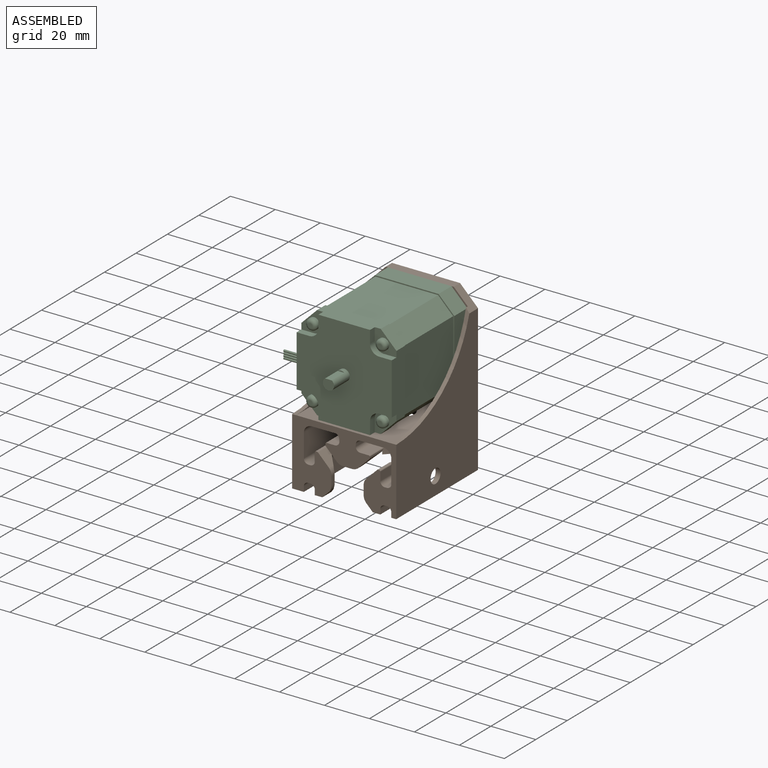
[diagram: assembled view]
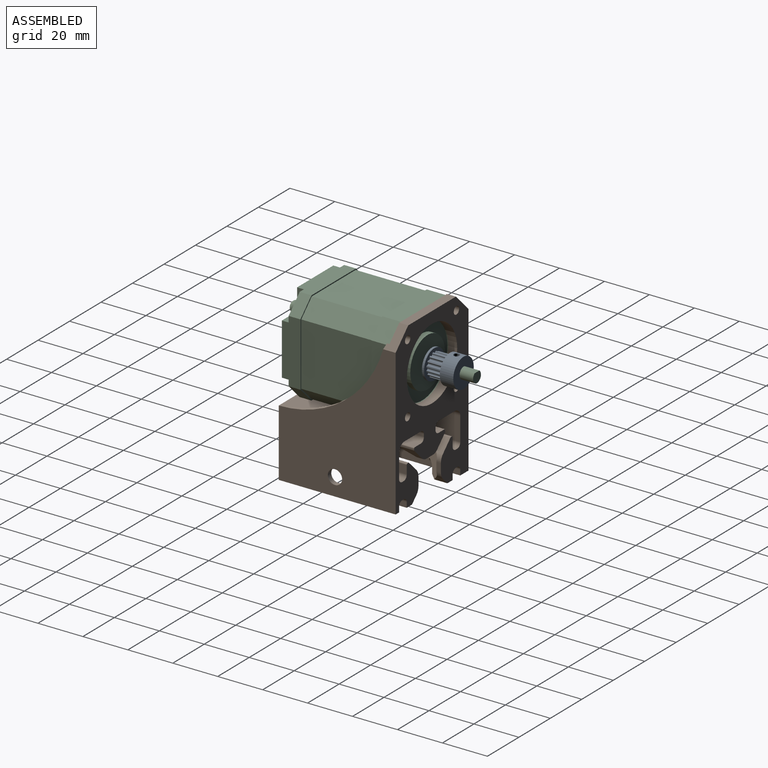
[diagram: assembled view, second angle]
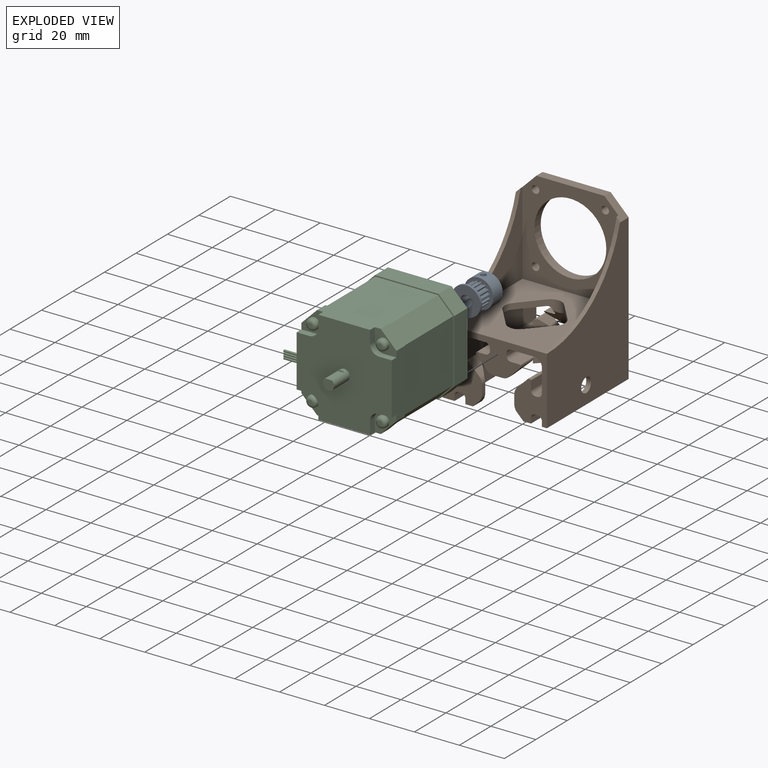
[diagram: exploded view]
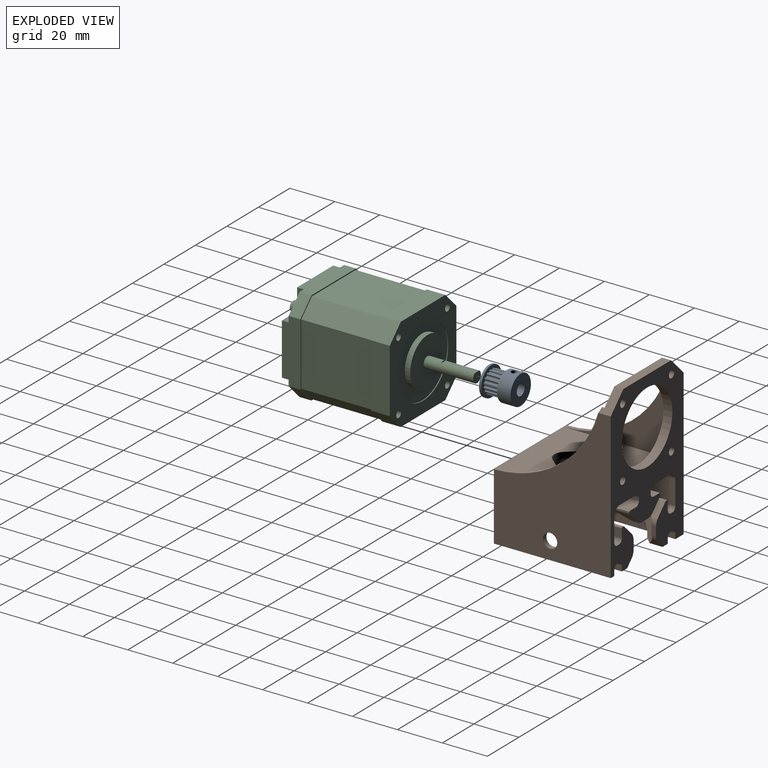
[diagram: exploded view, second angle]
ASSEMBLY  parts=3 mates=2
PART A: 104 faces, bbox 13x13x14 mm
  f0: cylinder r=2.5mm len=14mm, axis (0,0,1), area 214.8mm2, adj f2,f102,f103
  f1: cylinder r=6.5mm len=13mm, axis (0,0,1), area 240.1mm2, adj f2,f3,f103
  f2: plane 13x13mm, normal (0,0,-1), area 113.1mm2, adj f0,f1
  f3: plane 13x13mm, normal (0,0,1), area 62.7mm2, adj f1,f4,f5,f6,f7,f8,f9,f10
  f4: cylinder r=0.15mm len=7mm, axis (0,0,-1), area 1.7mm2, adj f3,f5,f99,f100
  f5: cylinder r=1mm len=7mm, axis (0,0,-1), area 1.7mm2, adj f3,f4,f6,f100
  f6: cylinder r=0.56mm len=7mm, axis (0,0,-1), area 9mm2, adj f3,f5,f7,f100
  f7: cylinder r=1mm len=7mm, axis (0,0,-1), area 1.7mm2, adj f3,f6,f8,f100
  f8: cylinder r=0.15mm len=7mm, axis (0,0,-1), area 1.7mm2, adj f3,f7,f9,f100
  f9: plane 7x0.49mm, normal (0.98,0.2,0), area 3.5mm2, adj f3,f8,f10,f100
  f10: cylinder r=0.15mm len=7mm, axis (0,0,-1), area 1.7mm2, adj f3,f9,f11,f100
  f11: cylinder r=1mm len=7mm, axis (0,0,-1), area 1.7mm2, adj f3,f10,f12,f100
  f12: cylinder r=0.56mm len=7mm, axis (0,0,-1), area 9mm2, adj f3,f11,f13,f100
  f13: cylinder r=1mm len=7mm, axis (0,0,-1), area 1.7mm2, adj f3,f12,f14,f100
  f14: cylinder r=0.15mm len=7mm, axis (0,0,-1), area 1.7mm2, adj f3,f13,f15,f100
  f15: plane 7x0.41mm, normal (0.83,0.56,0), area 3.5mm2, adj f3,f14,f16,f100
  f16: cylinder r=0.15mm len=7mm, axis (0,0,-1), area 1.7mm2, adj f3,f15,f17,f100
  f17: cylinder r=1mm len=7mm, axis (0,0,-1), area 1.7mm2, adj f3,f16,f18,f100
  f18: cylinder r=0.56mm len=7mm, axis (0,0,-1), area 9mm2, adj f3,f17,f19,f100
  f19: cylinder r=1mm len=7mm, axis (0,0,-1), area 1.7mm2, adj f3,f18,f20,f100
  f20: cylinder r=0.15mm len=7mm, axis (0,0,-1), area 1.7mm2, adj f3,f19,f21,f100
  f21: plane 7x0.41mm, normal (0.56,0.83,0), area 3.5mm2, adj f3,f20,f22,f100
  f22: cylinder r=0.15mm len=7mm, axis (0,0,-1), area 1.7mm2, adj f3,f21,f23,f100
  f23: cylinder r=1mm len=7mm, axis (0,0,-1), area 1.7mm2, adj f3,f22,f24,f100
  f24: cylinder r=0.56mm len=7mm, axis (0,0,-1), area 9mm2, adj f3,f23,f25,f100
  f25: cylinder r=1mm len=7mm, axis (0,0,-1), area 1.7mm2, adj f3,f24,f26,f100
  f26: cylinder r=0.15mm len=7mm, axis (0,0,-1), area 1.7mm2, adj f3,f25,f27,f100
  f27: plane 7x0.49mm, normal (0.2,0.98,0), area 3.5mm2, adj f3,f26,f28,f100
  f28: cylinder r=0.15mm len=7mm, axis (0,0,-1), area 1.7mm2, adj f3,f27,f29,f100
  f29: cylinder r=1mm len=7mm, axis (0,0,-1), area 1.7mm2, adj f3,f28,f30,f100
  f30: cylinder r=0.56mm len=7mm, axis (0,0,-1), area 9mm2, adj f3,f29,f31,f100
  f31: cylinder r=1mm len=7mm, axis (0,0,-1), area 1.7mm2, adj f3,f30,f32,f100
  f32: cylinder r=0.15mm len=7mm, axis (0,0,-1), area 1.7mm2, adj f3,f31,f33,f100
  f33: plane 7x0.49mm, normal (-0.2,0.98,0), area 3.5mm2, adj f3,f32,f34,f100
  f34: cylinder r=0.15mm len=7mm, axis (0,0,-1), area 1.7mm2, adj f3,f33,f35,f100
  f35: cylinder r=1mm len=7mm, axis (0,0,-1), area 1.7mm2, adj f3,f34,f36,f100
  f36: cylinder r=0.56mm len=7mm, axis (0,0,-1), area 9mm2, adj f3,f35,f37,f100
  f37: cylinder r=1mm len=7mm, axis (0,0,-1), area 1.7mm2, adj f3,f36,f38,f100
  f38: cylinder r=0.15mm len=7mm, axis (0,0,-1), area 1.7mm2, adj f3,f37,f39,f100
  f39: plane 7x0.41mm, normal (-0.56,0.83,0), area 3.5mm2, adj f3,f38,f40,f100
  f40: cylinder r=0.15mm len=7mm, axis (0,0,-1), area 1.7mm2, adj f3,f39,f41,f100
  f41: cylinder r=1mm len=7mm, axis (0,0,-1), area 1.7mm2, adj f3,f40,f42,f100
  f42: cylinder r=0.56mm len=7mm, axis (0,0,-1), area 9mm2, adj f3,f41,f43,f100
  f43: cylinder r=1mm len=7mm, axis (0,0,-1), area 1.7mm2, adj f3,f42,f44,f100
  f44: cylinder r=0.15mm len=7mm, axis (0,0,-1), area 1.7mm2, adj f3,f43,f45,f100
  f45: plane 7x0.41mm, normal (-0.83,0.56,0), area 3.5mm2, adj f3,f44,f46,f100
  f46: cylinder r=0.15mm len=7mm, axis (0,0,-1), area 1.7mm2, adj f3,f45,f47,f100
  f47: cylinder r=1mm len=7mm, axis (0,0,-1), area 1.7mm2, adj f3,f46,f48,f100
  f48: cylinder r=0.56mm len=7mm, axis (0,0,-1), area 9mm2, adj f3,f47,f49,f100
  f49: cylinder r=1mm len=7mm, axis (0,0,-1), area 1.7mm2, adj f3,f48,f50,f100
  f50: cylinder r=0.15mm len=7mm, axis (0,0,-1), area 1.7mm2, adj f3,f49,f51,f100
  f51: plane 7x0.49mm, normal (-0.98,0.2,0), area 3.5mm2, adj f3,f50,f52,f100
  f52: cylinder r=0.15mm len=7mm, axis (0,0,-1), area 1.7mm2, adj f3,f51,f53,f100
  f53: cylinder r=1mm len=7mm, axis (0,0,-1), area 1.7mm2, adj f3,f52,f54,f100
  f54: cylinder r=0.56mm len=7mm, axis (0,0,-1), area 9mm2, adj f3,f53,f55,f100
  f55: cylinder r=1mm len=7mm, axis (0,0,-1), area 1.7mm2, adj f3,f54,f56,f100
  f56: cylinder r=0.15mm len=7mm, axis (0,0,-1), area 1.7mm2, adj f3,f55,f57,f100
  f57: plane 7x0.49mm, normal (-0.98,-0.2,0), area 3.5mm2, adj f3,f56,f58,f100
  f58: cylinder r=0.15mm len=7mm, axis (0,0,-1), area 1.7mm2, adj f3,f57,f59,f100
  f59: cylinder r=1mm len=7mm, axis (0,0,-1), area 1.7mm2, adj f3,f58,f60,f100
  f60: cylinder r=0.56mm len=7mm, axis (0,0,-1), area 9mm2, adj f3,f59,f61,f100
  f61: cylinder r=1mm len=7mm, axis (0,0,-1), area 1.7mm2, adj f3,f60,f62,f100
  f62: cylinder r=0.15mm len=7mm, axis (0,0,-1), area 1.7mm2, adj f3,f61,f63,f100
  f63: plane 7x0.41mm, normal (-0.83,-0.56,0), area 3.5mm2, adj f3,f62,f64,f100
  f64: cylinder r=0.15mm len=7mm, axis (0,0,-1), area 1.7mm2, adj f3,f63,f65,f100
  f65: cylinder r=1mm len=7mm, axis (0,0,-1), area 1.7mm2, adj f3,f64,f66,f100
  f66: cylinder r=0.56mm len=7mm, axis (0,0,-1), area 9mm2, adj f3,f65,f67,f100
  f67: cylinder r=1mm len=7mm, axis (0,0,-1), area 1.7mm2, adj f3,f66,f68,f100
  f68: cylinder r=0.15mm len=7mm, axis (0,0,-1), area 1.7mm2, adj f3,f67,f69,f100
  f69: plane 7x0.41mm, normal (-0.56,-0.83,0), area 3.5mm2, adj f3,f68,f70,f100
  f70: cylinder r=0.15mm len=7mm, axis (0,0,-1), area 1.7mm2, adj f3,f69,f71,f100
  f71: cylinder r=1mm len=7mm, axis (0,0,-1), area 1.7mm2, adj f3,f70,f72,f100
  f72: cylinder r=0.56mm len=7mm, axis (0,0,-1), area 9mm2, adj f3,f71,f73,f100
  f73: cylinder r=1mm len=7mm, axis (0,0,-1), area 1.7mm2, adj f3,f72,f74,f100
  f74: cylinder r=0.15mm len=7mm, axis (0,0,-1), area 1.7mm2, adj f3,f73,f75,f100
  f75: plane 7x0.49mm, normal (-0.2,-0.98,0), area 3.5mm2, adj f3,f74,f76,f100
  f76: cylinder r=0.15mm len=7mm, axis (0,0,-1), area 1.7mm2, adj f3,f75,f77,f100
  f77: cylinder r=1mm len=7mm, axis (0,0,-1), area 1.7mm2, adj f3,f76,f78,f100
  f78: cylinder r=0.56mm len=7mm, axis (0,0,-1), area 9mm2, adj f3,f77,f79,f100
  f79: cylinder r=1mm len=7mm, axis (0,0,-1), area 1.7mm2, adj f3,f78,f80,f100
  f80: cylinder r=0.15mm len=7mm, axis (0,0,-1), area 1.7mm2, adj f3,f79,f81,f100
  f81: plane 7x0.49mm, normal (0.2,-0.98,0), area 3.5mm2, adj f3,f80,f82,f100
  f82: cylinder r=0.15mm len=7mm, axis (0,0,-1), area 1.7mm2, adj f3,f81,f83,f100
  f83: cylinder r=1mm len=7mm, axis (0,0,-1), area 1.7mm2, adj f3,f82,f84,f100
  f84: cylinder r=0.56mm len=7mm, axis (0,0,-1), area 9mm2, adj f3,f83,f85,f100
  f85: cylinder r=1mm len=7mm, axis (0,0,-1), area 1.7mm2, adj f3,f84,f86,f100
  f86: cylinder r=0.15mm len=7mm, axis (0,0,-1), area 1.7mm2, adj f3,f85,f87,f100
  f87: plane 7x0.41mm, normal (0.56,-0.83,0), area 3.5mm2, adj f3,f86,f88,f100
  f88: cylinder r=0.15mm len=7mm, axis (0,0,-1), area 1.7mm2, adj f3,f87,f89,f100
  f89: cylinder r=1mm len=7mm, axis (0,0,-1), area 1.7mm2, adj f3,f88,f90,f100
  f90: cylinder r=0.56mm len=7mm, axis (0,0,-1), area 9mm2, adj f3,f89,f91,f100
  f91: cylinder r=1mm len=7mm, axis (0,0,-1), area 1.7mm2, adj f3,f90,f92,f100
  f92: cylinder r=0.15mm len=7mm, axis (0,0,-1), area 1.7mm2, adj f3,f91,f93,f100
  f93: plane 7x0.41mm, normal (0.83,-0.56,0), area 3.5mm2, adj f3,f92,f94,f100
  f94: cylinder r=0.15mm len=7mm, axis (0,0,-1), area 1.7mm2, adj f3,f93,f95,f100
  f95: cylinder r=1mm len=7mm, axis (0,0,-1), area 1.7mm2, adj f3,f94,f96,f100
  f96: cylinder r=0.56mm len=7mm, axis (0,0,-1), area 9mm2, adj f3,f95,f97,f100
  f97: cylinder r=1mm len=7mm, axis (0,0,-1), area 1.7mm2, adj f3,f96,f98,f100
  f98: cylinder r=0.15mm len=7mm, axis (0,0,-1), area 1.7mm2, adj f3,f97,f99,f100
  f99: plane 7x0.49mm, normal (0.98,-0.2,0), area 3.5mm2, adj f3,f4,f98,f100
  f100: plane 13x13mm, normal (0,0,-1), area 62.7mm2, adj f4,f5,f6,f7,f8,f9,f10,f11
  f101: cylinder r=6.5mm len=13mm, axis (0,0,-1), area 40.8mm2, adj f100,f102
  f102: plane 13x13mm, normal (0,0,1), area 113.1mm2, adj f0,f101
  f103: cylinder r=1.25mm len=4.34mm, axis (0,-1,0), area 32.2mm2, adj f0,f1
PART B: 154 faces, bbox 46.4x73.1x52.1 mm
  f0: plane 52x13.06mm, normal (0,-1,0), area 470.1mm2, adj f5,f6,f88,f116,f125,f138,f140,f146
  f1: plane 9.14x3.34mm, normal (0,-1,0), area 24.9mm2, adj f91,f101,f116,f137
  f2: plane 9.14x3.34mm, normal (0,-1,0), area 24.9mm2, adj f92,f102,f125,f139
  f3: plane 9.14x3.34mm, normal (0,-1,0), area 24.9mm2, adj f89,f99,f116,f136
  f4: plane 9.14x3.34mm, normal (0,-1,0), area 24.9mm2, adj f90,f100,f125,f141
  f5: cylinder r=1.95mm len=14mm, axis (0,0,-1), area 40.8mm2, adj f0,f7,f116,f138
  f6: cylinder r=1.95mm len=14mm, axis (0,0,-1), area 40.8mm2, adj f0,f8,f125,f140
  f7: plane 12.05x0.96mm, normal (1,0,0), area 11.1mm2, adj f5,f9,f116,f138
  f8: plane 12.05x0.96mm, normal (1,0,0), area 11.1mm2, adj f6,f10,f125,f140
  f9: cylinder r=1.95mm len=11.09mm, axis (0,0,-1), area 30.2mm2, adj f7,f11,f116,f138
  f10: cylinder r=1.95mm len=11.09mm, axis (0,0,-1), area 30.2mm2, adj f8,f12,f125,f140
  f11: plane 9.14x3.77mm, normal (0,1,0), area 34.4mm2, adj f9,f13,f116,f138
  f12: plane 9.14x3.77mm, normal (0,1,0), area 34.4mm2, adj f10,f14,f125,f140
  f13: cylinder r=0.5mm len=9.14mm, axis (0,0,-1), area 7.1mm2, adj f11,f15,f116,f138
  f14: cylinder r=0.5mm len=9.14mm, axis (0,0,-1), area 7.1mm2, adj f12,f16,f125,f140
  f15: plane 8.63x0.53mm, normal (1,0,0), area 4.5mm2, adj f13,f17,f116,f138
  f16: plane 8.63x0.53mm, normal (1,0,0), area 4.5mm2, adj f14,f18,f125,f140
  f17: cylinder r=0.5mm len=8.1mm, axis (0,0,-1), area 3.1mm2, adj f15,f19,f116,f138
  f18: cylinder r=0.5mm len=8.1mm, axis (0,0,-1), area 3.1mm2, adj f16,f20,f125,f140
  f19: plane 7.75x5.05mm, normal (0.71,-0.71,0), area 37.3mm2, adj f17,f21,f116,f138
  f20: plane 7.75x5.05mm, normal (0.71,-0.71,0), area 37.3mm2, adj f18,f22,f125,f140
  f21: cylinder r=4.36mm len=2.78mm, axis (0,0,-1), area 6.5mm2, adj f19,f23,f116,f134,f138
  f22: cylinder r=4.36mm len=2.78mm, axis (0,0,-1), area 6.5mm2, adj f20,f24,f125,f135,f140
  f23: plane 3.8x2mm, normal (0,-1,0), area 7.6mm2, adj f21,f25,f116,f134
  f24: plane 3.8x2mm, normal (0,-1,0), area 7.6mm2, adj f22,f26,f125,f135
  f25: cylinder r=4.36mm len=2.78mm, axis (0,0,-1), area 6.5mm2, adj f23,f27,f116,f134,f138
  f26: cylinder r=4.36mm len=2.78mm, axis (0,0,-1), area 6.5mm2, adj f24,f28,f125,f135,f140
  f27: plane 7.75x5.05mm, normal (-0.71,-0.71,0), area 37.3mm2, adj f25,f29,f116,f138
  f28: plane 7.75x5.05mm, normal (-0.71,-0.71,0), area 37.3mm2, adj f26,f30,f125,f140
  f29: cylinder r=0.5mm len=8.1mm, axis (0,0,-1), area 3.1mm2, adj f27,f31,f116,f138
  f30: cylinder r=0.5mm len=8.1mm, axis (0,0,-1), area 3.1mm2, adj f28,f32,f125,f140
  f31: plane 8.63x0.53mm, normal (-1,0,0), area 4.5mm2, adj f29,f33,f116,f138
  f32: plane 8.63x0.53mm, normal (-1,0,0), area 4.5mm2, adj f30,f34,f125,f140
  f33: cylinder r=0.5mm len=9.14mm, axis (0,0,-1), area 7.1mm2, adj f31,f35,f116,f138
  f34: cylinder r=0.5mm len=9.14mm, axis (0,0,-1), area 7.1mm2, adj f32,f36,f125,f140
  f35: plane 9.14x3.77mm, normal (0,1,0), area 34.4mm2, adj f33,f37,f116,f138
  f36: plane 9.14x3.77mm, normal (0,1,0), area 34.4mm2, adj f34,f38,f125,f140
  f37: cylinder r=1.95mm len=11.09mm, axis (0,0,-1), area 30.2mm2, adj f35,f39,f116,f138
  f38: cylinder r=1.95mm len=11.09mm, axis (0,0,-1), area 30.2mm2, adj f36,f40,f125,f140
  f39: plane 12.05x0.96mm, normal (-1,0,0), area 11.1mm2, adj f37,f41,f116,f138
  f40: plane 11.18x0.96mm, normal (-1,0,0), area 10.7mm2, adj f38,f42,f125,f140,f148
  f41: cylinder r=1.95mm len=13.8mm, axis (0,0,-1), area 38.8mm2, adj f39,f116,f117,f138,f144,f150
  f42: cylinder r=1.95mm len=12.8mm, axis (0,0,-1), area 35.8mm2, adj f40,f117,f125,f145,f148
  f43: cylinder r=3.49mm len=52mm, axis (0,0,-1), area 296.8mm2, adj f116,f117,f118,f125
  f44: cylinder r=1.95mm len=14mm, axis (0,0,-1), area 40.8mm2, adj f46,f116,f118,f136
  f45: cylinder r=1.95mm len=14mm, axis (0,0,-1), area 40.8mm2, adj f47,f118,f125,f141
  f46: plane 12.05x0.96mm, normal (0,1,0), area 11.1mm2, adj f44,f48,f116,f136
  f47: plane 12.05x0.96mm, normal (0,1,0), area 11.1mm2, adj f45,f49,f125,f141
  f48: cylinder r=1.95mm len=11.09mm, axis (0,0,-1), area 30.2mm2, adj f46,f50,f116,f136
  f49: cylinder r=1.95mm len=11.09mm, axis (0,0,-1), area 30.2mm2, adj f47,f51,f125,f141
  f50: plane 9.14x3.77mm, normal (-1,0,0), area 34.4mm2, adj f48,f52,f116,f136
  f51: plane 9.14x3.77mm, normal (-1,0,0), area 34.4mm2, adj f49,f53,f125,f141
  f52: cylinder r=0.5mm len=9.14mm, axis (0,0,-1), area 7.1mm2, adj f50,f54,f116,f136
  f53: cylinder r=0.5mm len=9.14mm, axis (0,0,-1), area 7.1mm2, adj f51,f55,f125,f141
  f54: plane 8.63x0.57mm, normal (0,1,0), area 4.7mm2, adj f52,f56,f116,f136
  f55: plane 8.63x0.57mm, normal (0,1,0), area 4.7mm2, adj f53,f57,f125,f141
  f56: cylinder r=0.5mm len=8.07mm, axis (0,0,-1), area 3.1mm2, adj f54,f58,f116,f136
  f57: cylinder r=0.5mm len=8.07mm, axis (0,0,-1), area 3.1mm2, adj f55,f59,f125,f141
  f58: plane 7.71x5.01mm, normal (0.71,0.71,0), area 36.9mm2, adj f56,f60,f116,f136
  f59: plane 7.71x5.01mm, normal (0.71,0.71,0), area 36.9mm2, adj f57,f61,f125,f141
  f60: cylinder r=4.37mm len=2.79mm, axis (0,0,-1), area 6.5mm2, adj f58,f62,f116,f132,f136
  f61: cylinder r=4.37mm len=2.79mm, axis (0,0,-1), area 6.5mm2, adj f59,f63,f125,f133,f141
  f62: plane 3.87x2mm, normal (1,0,0), area 7.7mm2, adj f60,f64,f116,f132
  f63: plane 3.87x2mm, normal (1,0,0), area 7.7mm2, adj f61,f65,f125,f133
  f64: cylinder r=4.37mm len=3.36mm, axis (0,0,-1), area 8.9mm2, adj f62,f89,f116,f132,f136
  f65: cylinder r=4.37mm len=3.36mm, axis (0,0,-1), area 8.9mm2, adj f63,f90,f125,f133,f141
  f66: cylinder r=4.37mm len=3.36mm, axis (0,0,-1), area 8.9mm2, adj f68,f91,f116,f130,f137
  f67: cylinder r=4.37mm len=3.36mm, axis (0,0,-1), area 8.9mm2, adj f69,f92,f125,f131,f139
  f68: plane 3.87x2mm, normal (-1,0,0), area 7.7mm2, adj f66,f70,f116,f130
  f69: plane 3.87x2mm, normal (-1,0,0), area 7.7mm2, adj f67,f71,f125,f131
  f70: cylinder r=4.37mm len=3.36mm, axis (0,0,-1), area 8.9mm2, adj f68,f72,f116,f130,f137
  f71: cylinder r=4.37mm len=3.36mm, axis (0,0,-1), area 8.9mm2, adj f69,f73,f125,f131,f139
  f72: plane 7.71x4.45mm, normal (-0.71,0.71,0), area 34.5mm2, adj f70,f74,f116,f137
  f73: plane 7.71x4.45mm, normal (-0.71,0.71,0), area 34.5mm2, adj f71,f75,f125,f139
  f74: cylinder r=0.5mm len=8.07mm, axis (0,0,-1), area 3.1mm2, adj f72,f76,f116,f137
  f75: cylinder r=0.5mm len=8.07mm, axis (0,0,-1), area 3.1mm2, adj f73,f77,f125,f139
  f76: plane 8.63x0.57mm, normal (0,1,0), area 4.7mm2, adj f74,f78,f116,f137
  f77: plane 8.63x0.57mm, normal (0,1,0), area 4.7mm2, adj f75,f79,f125,f139
  f78: cylinder r=0.5mm len=9.14mm, axis (0,0,-1), area 7.1mm2, adj f76,f80,f116,f137
  f79: cylinder r=0.5mm len=9.14mm, axis (0,0,-1), area 7.1mm2, adj f77,f81,f125,f139
  f80: plane 9.14x3.77mm, normal (1,0,0), area 34.4mm2, adj f78,f82,f116,f137
  f81: plane 9.14x3.77mm, normal (1,0,0), area 34.4mm2, adj f79,f83,f125,f139
  f82: cylinder r=1.95mm len=11.09mm, axis (0,0,-1), area 30.2mm2, adj f80,f84,f116,f137
  f83: cylinder r=1.95mm len=11.09mm, axis (0,0,-1), area 30.2mm2, adj f81,f85,f125,f139
  f84: plane 12.05x0.96mm, normal (0,1,0), area 11.1mm2, adj f82,f86,f116,f137
  f85: plane 12.05x0.96mm, normal (0,1,0), area 11.1mm2, adj f83,f87,f125,f139
  f86: cylinder r=1.95mm len=14mm, axis (0,0,-1), area 40.8mm2, adj f84,f116,f119,f137
  f87: cylinder r=1.95mm len=14mm, axis (0,0,-1), area 40.8mm2, adj f85,f119,f125,f139
  f88: cylinder r=3.49mm len=52mm, axis (0,0,-1), area 296.8mm2, adj f0,f116,f119,f125
  f89: plane 5.8x2.53mm, normal (0.71,-0.71,0), area 16.2mm2, adj f3,f64,f116,f136
  f90: plane 5.8x2.53mm, normal (0.71,-0.71,0), area 16.2mm2, adj f4,f65,f125,f141
  f91: plane 5.8x2.53mm, normal (-0.71,-0.71,0), area 16.2mm2, adj f1,f66,f116,f137
  f92: plane 5.8x2.53mm, normal (-0.71,-0.71,0), area 16.2mm2, adj f2,f67,f125,f139
  f93: cylinder r=1.95mm len=11.09mm, axis (0,0,-1), area 30.2mm2, adj f95,f99,f116,f136
  f94: cylinder r=1.95mm len=11.09mm, axis (0,0,-1), area 30.2mm2, adj f96,f100,f125,f141
  f95: plane 12.05x0.96mm, normal (0,-1,0), area 11.1mm2, adj f93,f97,f116,f136
  f96: plane 12.05x0.96mm, normal (0,-1,0), area 11.1mm2, adj f94,f98,f125,f141
  f97: cylinder r=1.95mm len=14mm, axis (0,0,-1), area 40.8mm2, adj f95,f116,f118,f136
  f98: cylinder r=1.95mm len=14mm, axis (0,0,-1), area 40.8mm2, adj f96,f118,f125,f141
  f99: plane 9.14x2.21mm, normal (-1,0,0), area 20.2mm2, adj f3,f93,f116,f136
  f100: plane 9.14x2.21mm, normal (-1,0,0), area 20.2mm2, adj f4,f94,f125,f141
  f101: plane 9.14x2.21mm, normal (1,0,0), area 20.2mm2, adj f1,f103,f116,f137
  f102: plane 9.14x2.21mm, normal (1,0,0), area 20.2mm2, adj f2,f104,f125,f139
  f103: cylinder r=1.95mm len=11.09mm, axis (0,0,-1), area 30.2mm2, adj f101,f105,f116,f137
  f104: cylinder r=1.95mm len=11.09mm, axis (0,0,-1), area 30.2mm2, adj f102,f106,f125,f139
  f105: plane 12.05x0.96mm, normal (0,-1,0), area 11.1mm2, adj f103,f107,f116,f137
  f106: plane 12.05x0.96mm, normal (0,-1,0), area 11.1mm2, adj f104,f108,f125,f139
  f107: cylinder r=1.95mm len=14mm, axis (0,0,-1), area 40.8mm2, adj f105,f116,f119,f137
  f108: cylinder r=1.95mm len=14mm, axis (0,0,-1), area 40.8mm2, adj f106,f119,f125,f139
  f109: plane 48x42.7mm, normal (0,1,0), area 1547.3mm2, adj f110,f125,f127,f129,f144,f145,f146,f147
  f110: plane 43.08x42.7mm, normal (0,0,1), area 960.3mm2, adj f109,f114,f120,f121,f122,f123,f124,f127
  f111: plane 52x2.2mm, normal (0,-1,0), area 114.4mm2, adj f113,f116,f119,f125
  f112: plane 52x5.2mm, normal (0,-1,0), area 270.4mm2, adj f115,f116,f118,f125
  f113: plane 65x52mm, normal (1,0,0), area 2147mm2, adj f111,f116,f125,f126,f143,f152
  f114: plane 30.3x4mm, normal (0,1,0), area 121.2mm2, adj f110,f116,f142,f143
  f115: plane 65x52mm, normal (-1,0,0), area 2147mm2, adj f112,f116,f125,f128,f142,f153
  f116: plane 73x46.3mm, normal (0,0,-1), area 1851.5mm2, adj f0,f1,f3,f5,f7,f9,f11,f13
  f117: plane 52x10.23mm, normal (0,-1,0), area 397.5mm2, adj f41,f42,f43,f116,f125,f144,f145,f151
  f118: plane 52x23.67mm, normal (1,0,0), area 884.7mm2, adj f43,f44,f45,f97,f98,f112,f116,f125
  f119: plane 52x23.67mm, normal (-1,0,0), area 884.7mm2, adj f86,f87,f88,f107,f108,f111,f116,f125
  f120: cylinder r=16mm len=32mm, axis (0,0,1), area 402.1mm2, adj f110,f116
  f121: cylinder r=1.7mm len=4mm, axis (0,0,1), area 42.7mm2, adj f110,f116
  f122: cylinder r=1.7mm len=4mm, axis (0,0,1), area 42.7mm2, adj f110,f116
  f123: cylinder r=1.7mm len=4mm, axis (0,0,1), area 42.7mm2, adj f110,f116
  f124: cylinder r=1.7mm len=4mm, axis (0,0,1), area 42.7mm2, adj f110,f116
  f125: plane 46.3x29.92mm, normal (0,0,1), area 761.6mm2, adj f0,f2,f4,f6,f8,f10,f12,f14
  f126: cylinder r=48.28mm len=46.92mm, axis (1,0,0), area 114.1mm2, adj f113,f125,f127,f143
  f127: plane 48x36.88mm, normal (-1,0,0), area 484.7mm2, adj f109,f110,f126,f143
  f128: cylinder r=48.28mm len=46.92mm, axis (-1,0,0), area 114.1mm2, adj f115,f125,f129,f142
  f129: plane 48x36.88mm, normal (1,0,0), area 484.7mm2, adj f109,f110,f128,f142
  f130: plane 7.11x0.31mm, normal (0,0,1), area 1.9mm2, adj f66,f68,f70,f137
  f131: plane 7.11x0.31mm, normal (0,0,-1), area 1.9mm2, adj f67,f69,f71,f139
  f132: plane 7.11x0.31mm, normal (0,0,1), area 1.9mm2, adj f60,f62,f64,f136
  f133: plane 7.11x0.31mm, normal (0,0,-1), area 1.9mm2, adj f61,f63,f65,f141
  f134: plane 7.04x0.31mm, normal (0,0,1), area 1.9mm2, adj f21,f23,f25,f138
  f135: plane 7.04x0.31mm, normal (0,0,-1), area 1.9mm2, adj f22,f24,f26,f140
  f136: plane 17.8x12.09mm, normal (0.71,0,0.71), area 198.9mm2, adj f3,f44,f46,f48,f50,f52,f54,f56
  f137: plane 17.74x12.03mm, normal (-0.71,0,0.71), area 198.9mm2, adj f1,f66,f70,f72,f74,f76,f78,f80
  f138: plane 19.87x12.09mm, normal (0,-0.71,0.71), area 187.4mm2, adj f0,f5,f7,f9,f11,f13,f15,f17
  f139: plane 17.74x12.03mm, normal (-0.71,0,-0.71), area 198.9mm2, adj f2,f67,f71,f73,f75,f77,f79,f81
  f140: plane 19.87x12.09mm, normal (0,-0.71,-0.71), area 177.7mm2, adj f0,f6,f8,f10,f12,f14,f16,f18
  f141: plane 17.8x12.09mm, normal (0.71,0,-0.71), area 198.9mm2, adj f4,f45,f47,f49,f51,f53,f55,f57
  f142: plane 8x8mm, normal (-0.71,0.71,0), area 48.6mm2, adj f110,f114,f115,f116,f128,f129
  f143: plane 8x8mm, normal (0.71,0.71,0), area 48.6mm2, adj f110,f113,f114,f116,f126,f127
  f144: plane 9.82x8.42mm, normal (0.76,0,0.65), area 34.3mm2, adj f41,f109,f117,f150,f151
  f145: plane 9.82x8.42mm, normal (0.76,0,-0.65), area 34.3mm2, adj f42,f109,f117,f148,f151
  f146: plane 9.82x8.41mm, normal (-0.76,0,-0.65), area 35.9mm2, adj f0,f109,f140,f148,f149
  f147: plane 9.82x8.41mm, normal (-0.76,0,0.65), area 34.5mm2, adj f0,f109,f138,f149,f150
  f148: cylinder r=5mm len=7.59mm, axis (0,-1,0), area 42.6mm2, adj f40,f42,f109,f140,f145,f146
  f149: cylinder r=5mm len=6.51mm, axis (0,-1,0), area 18.8mm2, adj f0,f109,f146,f147
  f150: cylinder r=5mm len=7.59mm, axis (0,-1,0), area 36mm2, adj f41,f109,f138,f144,f147
  f151: cylinder r=5mm len=6.51mm, axis (0,-1,0), area 18.8mm2, adj f109,f117,f144,f145
  f152: cylinder r=3.17mm len=6.35mm, axis (-1,0,0), area 43.9mm2, adj f113,f119
  f153: cylinder r=3.17mm len=6.35mm, axis (-1,0,0), area 103.7mm2, adj f115,f118
PART C: 93 faces, bbox 49.3x82x42.3 mm
  f0: plane 42.3x42.3mm, normal (0,1,0), area 858.8mm2, adj f1,f13,f15,f17,f19,f21,f32,f34
  f1: plane 8.25x7mm, normal (0.71,0,0.71), area 81.7mm2, adj f0,f3,f21,f34
  f2: plane 7x7mm, normal (0.71,0,0.71), area 52mm2, adj f12,f22,f23,f35
  f3: plane 42.3x42.3mm, normal (0,-1,0), area 75.6mm2, adj f1,f4,f5,f6,f7,f8,f9,f10
  f4: plane 31.5x6.71mm, normal (0.71,0,0.71), area 298.8mm2, adj f3,f5,f11,f12
  f5: plane 31.5x27.89mm, normal (1,0,0), area 878.4mm2, adj f3,f4,f6,f12
  f6: plane 31.5x6.71mm, normal (0.71,0,-0.71), area 298.8mm2, adj f3,f5,f7,f12
  f7: plane 31.5x27.89mm, normal (0,0,-1), area 878.4mm2, adj f3,f6,f8,f12
  f8: plane 31.5x6.71mm, normal (-0.71,0,-0.71), area 298.8mm2, adj f3,f7,f9,f12
  f9: plane 31.5x27.89mm, normal (-1,0,0), area 878.4mm2, adj f3,f8,f10,f12
  f10: plane 31.5x6.71mm, normal (-0.71,0,0.71), area 298.8mm2, adj f3,f9,f11,f12
  f11: plane 31.5x27.89mm, normal (0,0,1), area 878.4mm2, adj f3,f4,f10,f12
  f12: plane 42.3x42.3mm, normal (0,1,0), area 75.6mm2, adj f2,f4,f5,f6,f7,f8,f9,f10
  f13: plane 28.3x8.25mm, normal (-1,0,0), area 233.5mm2, adj f0,f3,f15,f32
  f14: plane 28.3x8.25mm, normal (-1,0,0), area 207.1mm2, adj f12,f16,f27,f29,f31,f33,f49,f50
  f15: plane 8.25x7mm, normal (-0.71,0,-0.71), area 81.7mm2, adj f0,f3,f13,f17
  f16: plane 7x7mm, normal (-0.71,0,-0.71), area 52mm2, adj f12,f14,f18,f49
  f17: plane 28.3x8.25mm, normal (0,0,-1), area 233.5mm2, adj f0,f3,f15,f19
  f18: plane 28.3x8.25mm, normal (0,0,-1), area 217.6mm2, adj f12,f16,f20,f27,f41,f42,f48,f49
  f19: plane 8.25x7mm, normal (0.71,0,-0.71), area 81.7mm2, adj f0,f3,f17,f21
  f20: plane 7x7mm, normal (0.71,0,-0.71), area 52mm2, adj f12,f18,f22,f41
  f21: plane 28.3x8.25mm, normal (1,0,0), area 233.5mm2, adj f0,f1,f3,f19
  f22: plane 28.3x8.25mm, normal (1,0,0), area 217.6mm2, adj f2,f12,f20,f23,f26,f27,f40,f41
  f23: plane 9.65x9.65mm, normal (0,-1,0), area 46.4mm2, adj f2,f22,f24,f25,f26,f35,f60
  f24: plane 5.65x3mm, normal (1,0,0), area 17mm2, adj f23,f25,f27,f35
  f25: cylinder r=4mm len=4mm, axis (0,1,0), area 18.8mm2, adj f23,f24,f26,f27
  f26: plane 5.65x3mm, normal (0,0,1), area 17mm2, adj f22,f23,f25,f27
  f27: plane 42.3x42.3mm, normal (0,-1,0), area 1410.9mm2, adj f14,f18,f22,f24,f25,f26,f28,f30
  f28: plane 5.65x3mm, normal (-1,0,0), area 17mm2, adj f27,f29,f30,f35
  f29: plane 9.65x9.65mm, normal (0,-1,0), area 46.4mm2, adj f14,f28,f30,f31,f33,f35,f36
  f30: cylinder r=4mm len=4mm, axis (0,-1,0), area 18.8mm2, adj f27,f28,f29,f31
  f31: plane 5.65x3mm, normal (0,0,1), area 17mm2, adj f14,f27,f29,f30
  f32: plane 8.25x7mm, normal (-0.71,0,0.71), area 81.7mm2, adj f0,f3,f13,f34
  f33: plane 7x7mm, normal (-0.71,0,0.71), area 52mm2, adj f12,f14,f29,f35
  f34: plane 28.3x8.25mm, normal (0,0,1), area 233.5mm2, adj f0,f1,f3,f32
  f35: plane 28.3x8.25mm, normal (0,0,1), area 217.6mm2, adj f2,f12,f23,f24,f27,f28,f29,f33
  f36: cylinder r=2.45mm len=4.9mm, axis (0,-1,0), area 15.4mm2, adj f29,f37,f39
  f37: torus R=0.95mm, axis (0,-1,0), area 14.1mm2, adj f36,f38,f39
  f38: plane 1.9x1.9mm, normal (0,-1,0), area 2.8mm2, adj f37,f39
  f39: torus R=0.95mm, axis (0,-1,0), area 14.1mm2, adj f36,f37,f38
  f40: plane 5.65x3mm, normal (0,0,-1), area 17mm2, adj f22,f27,f41,f43
  f41: plane 9.65x9.65mm, normal (0,-1,0), area 46.4mm2, adj f18,f20,f22,f40,f42,f43,f44
  f42: plane 5.65x3mm, normal (1,0,0), area 17mm2, adj f18,f27,f41,f43
  f43: cylinder r=4mm len=4mm, axis (0,-1,0), area 18.8mm2, adj f27,f40,f41,f42
  f44: cylinder r=2.45mm len=4.9mm, axis (0,-1,0), area 15.4mm2, adj f41,f45,f47
  f45: torus R=0.95mm, axis (0,-1,0), area 14.1mm2, adj f44,f46,f47
  f46: plane 1.9x1.9mm, normal (0,-1,0), area 2.8mm2, adj f45,f47
  f47: torus R=0.95mm, axis (0,-1,0), area 14.1mm2, adj f44,f45,f46
  f48: plane 5.65x3mm, normal (-1,0,0), area 17mm2, adj f18,f27,f49,f51
  f49: plane 9.65x9.65mm, normal (0,-1,0), area 46.4mm2, adj f14,f16,f18,f48,f50,f51,f52
  f50: plane 5.65x3mm, normal (0,0,-1), area 17mm2, adj f14,f27,f49,f51
  f51: cylinder r=4mm len=4mm, axis (0,1,0), area 18.8mm2, adj f27,f48,f49,f50
  f52: cylinder r=2.45mm len=4.9mm, axis (0,1,0), area 15.4mm2, adj f49,f53,f55
  f53: torus R=0.95mm, axis (0,1,0), area 14.1mm2, adj f52,f54,f55
  f54: plane 1.9x1.9mm, normal (0,-1,0), area 2.8mm2, adj f53,f55
  f55: torus R=0.95mm, axis (0,1,0), area 14.1mm2, adj f52,f53,f54
  f56: cylinder r=2.5mm len=10mm, axis (0,-1,0), area 131.3mm2, adj f27,f57,f58,f59
  f57: plane 8x3mm, normal (0,0,1), area 24mm2, adj f56,f58,f59
  f58: plane 5x4.5mm, normal (0,-1,0), area 18.6mm2, adj f56,f57
  f59: plane 3x0.5mm, normal (0,-1,0), area 1mm2, adj f56,f57
  f60: cylinder r=2.45mm len=4.9mm, axis (0,1,0), area 15.4mm2, adj f23,f61,f63
  f61: torus R=0.95mm, axis (0,1,0), area 14.1mm2, adj f60,f62,f63
  f62: plane 1.9x1.9mm, normal (0,-1,0), area 2.8mm2, adj f61,f63
  f63: torus R=0.95mm, axis (0,1,0), area 14.1mm2, adj f60,f61,f62
  f64: plane 3x1.75mm, normal (0,0,1), area 5.3mm2, adj f14,f65,f67,f68
  f65: plane 6x3mm, normal (0,-1,0), area 18mm2, adj f14,f64,f66,f68
  f66: plane 3x1.75mm, normal (0,0,-1), area 5.3mm2, adj f14,f65,f67,f68
  f67: plane 6x3mm, normal (0,1,0), area 18mm2, adj f14,f64,f66,f68
  f68: plane 6x1.75mm, normal (-1,0,0), area 7.6mm2, adj f64,f65,f66,f67,f69,f71,f73,f75
  f69: cylinder r=0.48mm len=10mm, axis (-1,0,0), area 30mm2, adj f68,f70
  f70: plane 0.96x0.96mm, normal (-1,0,0), area 0.7mm2, adj f69
  f71: cylinder r=0.48mm len=10mm, axis (-1,0,0), area 30mm2, adj f68,f72
  f72: plane 0.96x0.96mm, normal (-1,0,0), area 0.7mm2, adj f71
  f73: cylinder r=0.48mm len=10mm, axis (-1,0,0), area 30mm2, adj f68,f74
  f74: plane 0.96x0.96mm, normal (-1,0,0), area 0.7mm2, adj f73
  f75: cylinder r=0.48mm len=10mm, axis (-1,0,0), area 30mm2, adj f68,f76
  f76: plane 0.96x0.96mm, normal (-1,0,0), area 0.7mm2, adj f75
  f77: cylinder r=1.5mm len=4.5mm, axis (0,-1,0), area 42.4mm2, adj f0,f78
  f78: plane 3x3mm, normal (0,1,0), area 7.1mm2, adj f77
  f79: cylinder r=1.5mm len=4.5mm, axis (0,1,0), area 42.4mm2, adj f0,f80
  f80: plane 3x3mm, normal (0,1,0), area 7.1mm2, adj f79
  f81: cylinder r=1.5mm len=4.5mm, axis (0,1,0), area 42.4mm2, adj f0,f82
  f82: plane 3x3mm, normal (0,1,0), area 7.1mm2, adj f81
  f83: cylinder r=1.5mm len=4.5mm, axis (0,-1,0), area 42.4mm2, adj f0,f84
  f84: plane 3x3mm, normal (0,1,0), area 7.1mm2, adj f83
  f85: cylinder r=16mm len=32mm, axis (0,1,0), area 40.2mm2, adj f0,f86
  f86: plane 32x32mm, normal (0,1,0), area 424.1mm2, adj f85,f87
  f87: cylinder r=11mm len=22mm, axis (0,1,0), area 165.9mm2, adj f86,f88
  f88: plane 22x22mm, normal (0,1,0), area 360.5mm2, adj f87,f89
  f89: cylinder r=2.5mm len=22mm, axis (0,1,0), area 297.3mm2, adj f88,f90,f91,f92
  f90: plane 3x0.5mm, normal (0,1,0), area 1mm2, adj f89,f91
  f91: plane 15x3mm, normal (0,0,1), area 45mm2, adj f89,f90,f92
  f92: plane 5x4.5mm, normal (0,1,0), area 18.6mm2, adj f89,f91
PLACE A rot(axis=(1,0,0),90deg) t=(-31.56,23.26,0.34)mm
PLACE B rot(axis=(1,0,0),90deg) t=(-31.56,15.26,-2.66)mm
PLACE C t=(-31.56,11.26,0.34)mm fixed
MATE revolute A.f0 <-> C.f56  axis (0,1,0) through (-31.56,29.26,0.34)mm
MATE fastened C.f56 <-> B.f120  axis (0,1,0) through (-31.56,11.26,0.34)mm
